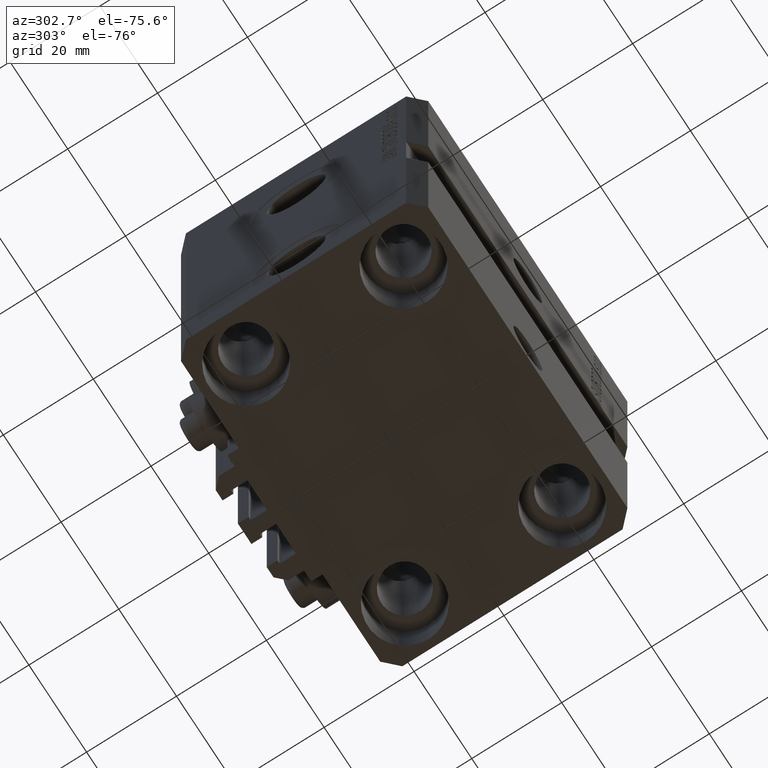
[diagram: clean part render]
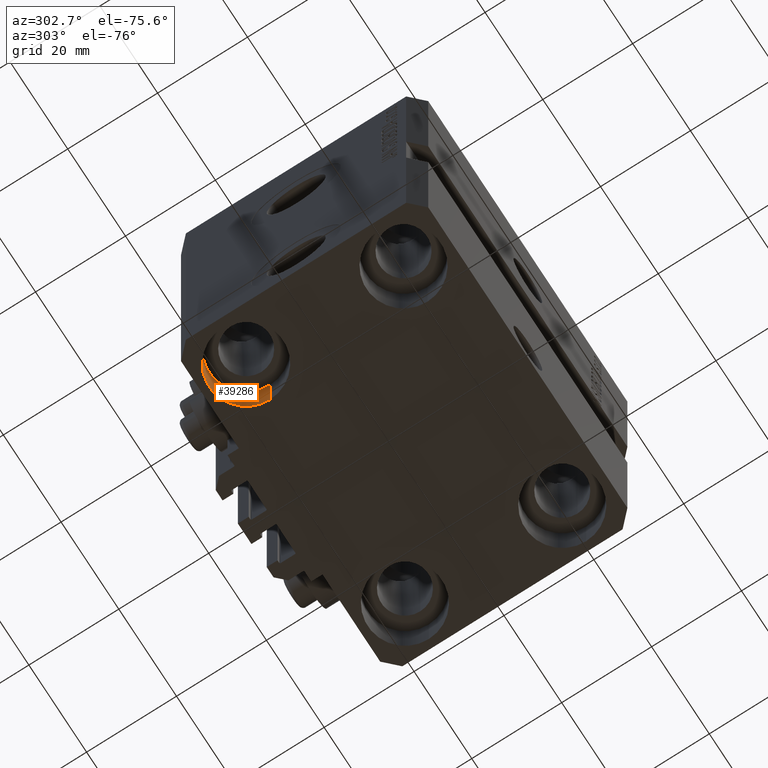
[diagram: same view with one face highlighted and labeled with its STEP entity id]
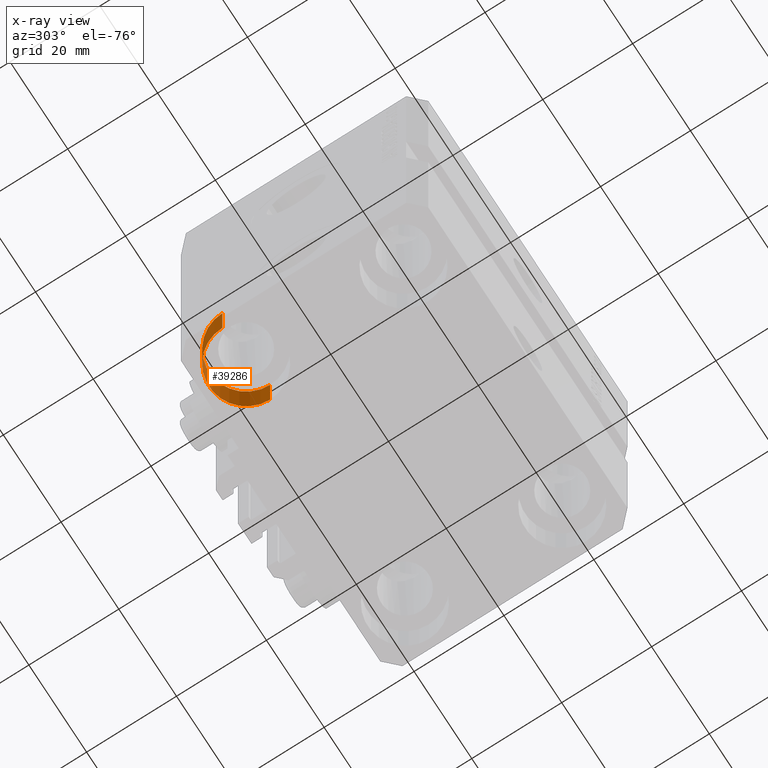
[diagram: x-ray of the same camera — body ghosted, the highlighted face saturated]
A machine part, auxiliary view. The second image highlights one B-rep face of the part: STEP entity #39286.
The next image is the same camera in x-ray: the body ghosted, the highlighted face saturated — about 0% of this face is hidden behind the body in this view.
In plain terms, the highlighted cylindrical surface (partial cylindrical patch) has radius 8.25 mm, axis along (-0, -0, -1).
Its self-contained STEP definition (entity closure, byte-faithful):
#3817 = CARTESIAN_POINT ( 'NONE',  ( -19.25000000000000355, 17.50000000000000000, -69.00000000000000000 ) ) ;
#4149 = VECTOR ( 'NONE', #5690, 1000.000000000000000 ) ;
#5690 = DIRECTION ( 'NONE',  ( -0.000000000000000000, -0.000000000000000000, -1.000000000000000000 ) ) ;
#6615 = VERTEX_POINT ( 'NONE', #32302 ) ;
#8028 = CIRCLE ( 'NONE', #33273, 8.250000000000000000 ) ;
#9970 = CARTESIAN_POINT ( 'NONE',  ( -19.25000000000000355, 17.50000000000000000, -69.00000000000000000 ) ) ;
#9995 = CARTESIAN_POINT ( 'NONE',  ( -35.75000000000000711, 17.50000000000000000, -69.00000000000000000 ) ) ;
#13144 = CIRCLE ( 'NONE', #35356, 8.250000000000000000 ) ;
#14340 = CARTESIAN_POINT ( 'NONE',  ( -35.75000000000000711, 17.50000000000000000, -69.00000000000000000 ) ) ;
#15661 = DIRECTION ( 'NONE',  ( -1.000000000000000000, 0.000000000000000000, 0.000000000000000000 ) ) ;
#17066 = EDGE_CURVE ( 'NONE', #6615, #45434, #13144, .T. ) ;
#17257 = DIRECTION ( 'NONE',  ( -0.000000000000000000, -0.000000000000000000, 1.000000000000000000 ) ) ;
#19261 = CYLINDRICAL_SURFACE ( 'NONE', #39170, 8.250000000000000000 ) ;
#19662 = ORIENTED_EDGE ( 'NONE', *, *, #17066, .F. ) ;
#22317 = EDGE_CURVE ( 'NONE', #35477, #6615, #28999, .T. ) ;
#23558 = ORIENTED_EDGE ( 'NONE', *, *, #44994, .T. ) ;
#25382 = EDGE_CURVE ( 'NONE', #43305, #45434, #38975, .T. ) ;
#25634 = CARTESIAN_POINT ( 'NONE',  ( -27.50000000000000355, 17.50000000000000000, -69.00000000000000000 ) ) ;
#27937 = EDGE_LOOP ( 'NONE', ( #38483, #23558, #39356, #19662 ) ) ;
#28999 = LINE ( 'NONE', #3817, #40734 ) ;
#31879 = DIRECTION ( 'NONE',  ( 1.000000000000000000, 0.000000000000000000, 0.000000000000000000 ) ) ;
#32302 = CARTESIAN_POINT ( 'NONE',  ( -19.25000000000000355, 17.50000000000000000, -80.00000000000000000 ) ) ;
#33273 = AXIS2_PLACEMENT_3D ( 'NONE', #25634, #17257, #31879 ) ;
#34119 = CARTESIAN_POINT ( 'NONE',  ( -27.50000000000000355, 17.50000000000000000, -69.00000000000000000 ) ) ;
#35356 = AXIS2_PLACEMENT_3D ( 'NONE', #38931, #35596, #46564 ) ;
#35477 = VERTEX_POINT ( 'NONE', #9970 ) ;
#35596 = DIRECTION ( 'NONE',  ( -0.000000000000000000, -0.000000000000000000, 1.000000000000000000 ) ) ;
#38483 = ORIENTED_EDGE ( 'NONE', *, *, #22317, .F. ) ;
#38931 = CARTESIAN_POINT ( 'NONE',  ( -27.50000000000000355, 17.50000000000000000, -80.00000000000000000 ) ) ;
#38975 = LINE ( 'NONE', #9995, #4149 ) ;
#39170 = AXIS2_PLACEMENT_3D ( 'NONE', #34119, #45094, #15661 ) ;
#39286 = ADVANCED_FACE ( 'NONE', ( #41040 ), #19261, .F. ) ;
#39356 = ORIENTED_EDGE ( 'NONE', *, *, #25382, .T. ) ;
#39757 = DIRECTION ( 'NONE',  ( -0.000000000000000000, -0.000000000000000000, -1.000000000000000000 ) ) ;
#40734 = VECTOR ( 'NONE', #39757, 1000.000000000000000 ) ;
#41040 = FACE_OUTER_BOUND ( 'NONE', #27937, .T. ) ;
#42286 = CARTESIAN_POINT ( 'NONE',  ( -35.75000000000000711, 17.50000000000000000, -80.00000000000000000 ) ) ;
#43305 = VERTEX_POINT ( 'NONE', #14340 ) ;
#44994 = EDGE_CURVE ( 'NONE', #35477, #43305, #8028, .T. ) ;
#45094 = DIRECTION ( 'NONE',  ( -0.000000000000000000, -0.000000000000000000, -1.000000000000000000 ) ) ;
#45434 = VERTEX_POINT ( 'NONE', #42286 ) ;
#46564 = DIRECTION ( 'NONE',  ( 1.000000000000000000, 0.000000000000000000, 0.000000000000000000 ) ) ;